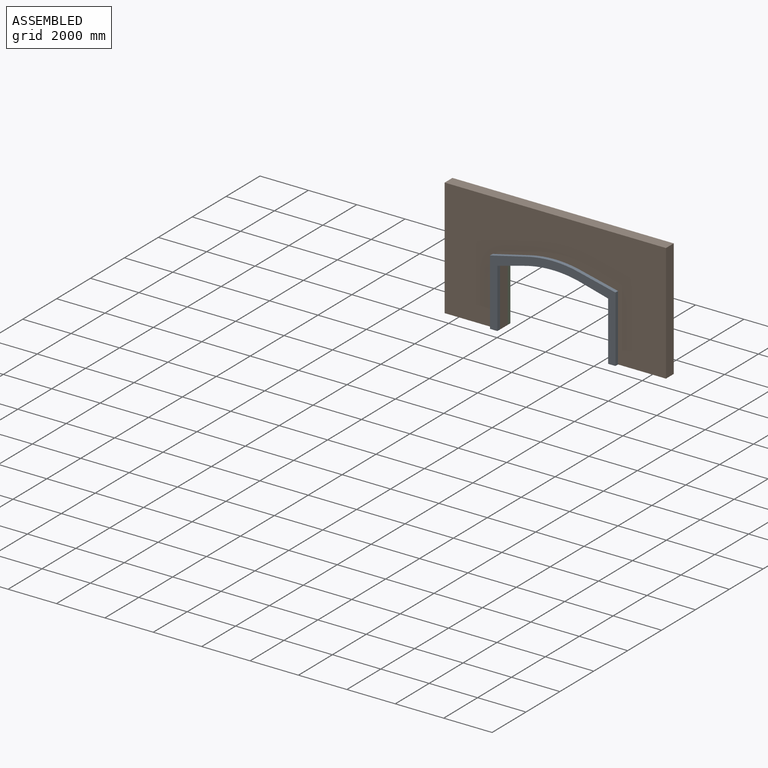
[diagram: assembled view]
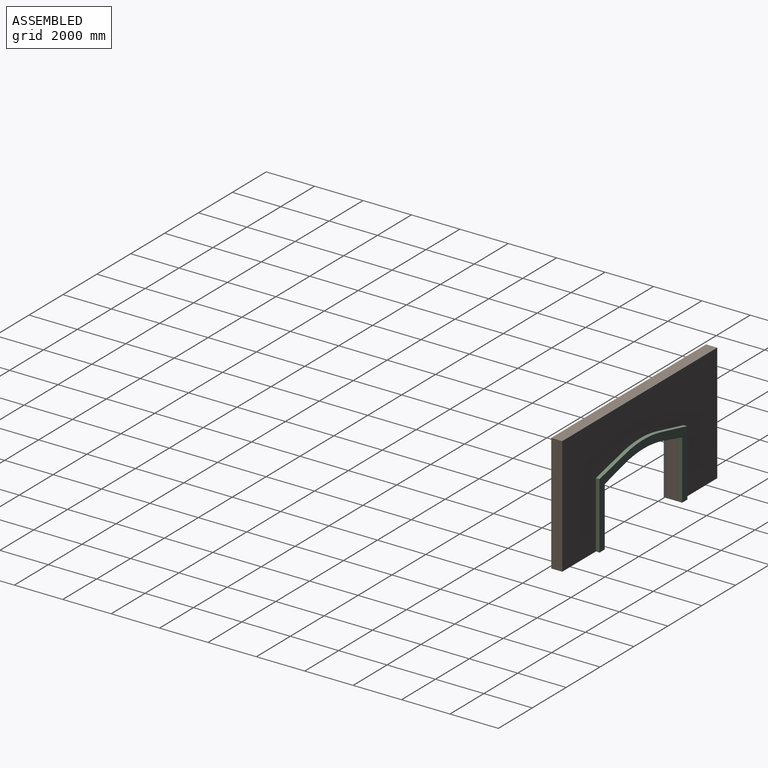
[diagram: assembled view, second angle]
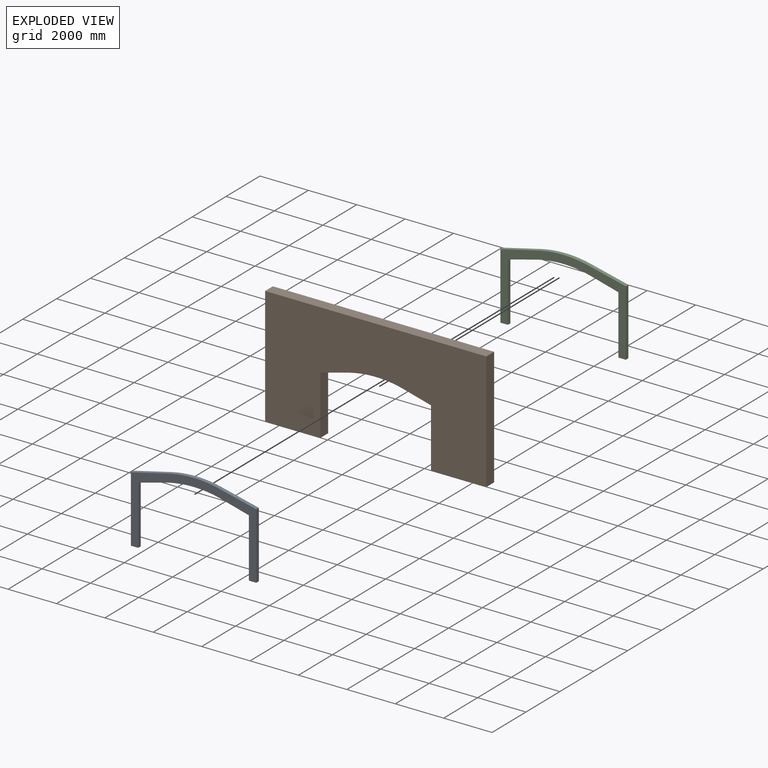
[diagram: exploded view]
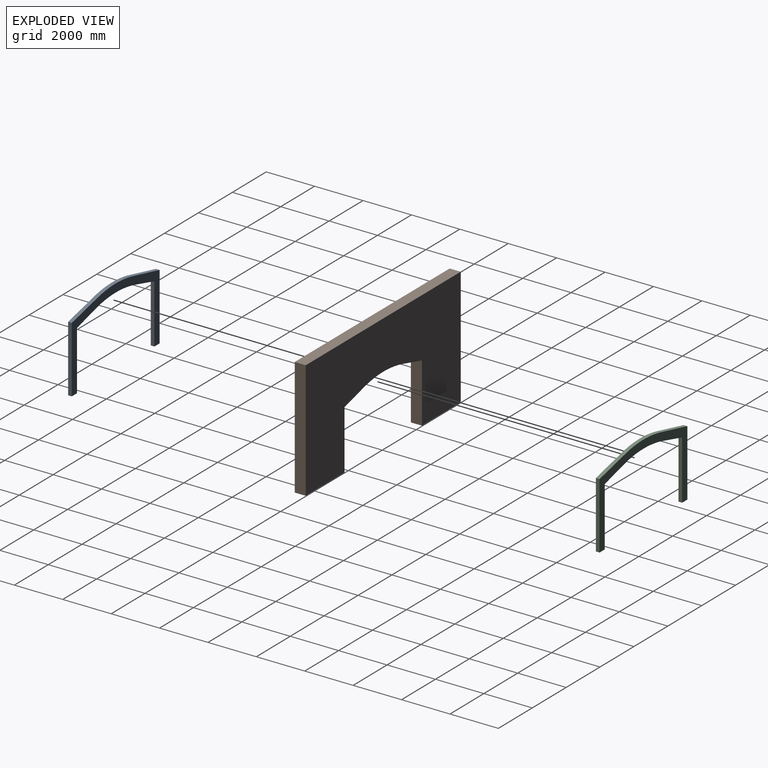
[diagram: exploded view, second angle]
ASSEMBLY  parts=3 mates=2
PART A: 14 faces, bbox 5181.6x152.4x3227.9 mm
  f0: plane 1107.97x295.46mm, normal (-0.26,0,-0.97), area 174754.7mm2, adj f1,f11,f12,f13
  f1: plane 2438.4x152.4mm, normal (-1,0,0), area 371612.2mm2, adj f0,f2,f12,f13
  f2: plane 304.8x152.4mm, normal (0,0,-1), area 46451.5mm2, adj f1,f3,f12,f13
  f3: plane 2743.2x152.4mm, normal (1,0,0), area 418063.7mm2, adj f2,f4,f12,f13
  f4: plane 1543.63x363.21mm, normal (0.23,0,0.97), area 241673.9mm2, adj f3,f5,f12,f13
  f5: cylinder r=4572mm len=2094.34mm, axis (0,1,0), area 322035.4mm2, adj f4,f6,f12,f13
  f6: plane 1543.63x363.21mm, normal (-0.23,0,0.97), area 241673.9mm2, adj f5,f7,f12,f13
  f7: plane 2743.2x152.4mm, normal (-1,0,0), area 418063.7mm2, adj f6,f8,f12,f13
  f8: plane 304.8x152.4mm, normal (0,0,-1), area 46451.5mm2, adj f7,f9,f12,f13
  f9: plane 2438.4x152.4mm, normal (1,0,0), area 371612.2mm2, adj f8,f10,f12,f13
  f10: plane 1107.97x295.46mm, normal (0.26,0,-0.97), area 174754.7mm2, adj f9,f11,f12,f13
  f11: cylinder r=4572mm len=2356.07mm, axis (0,1,0), area 363161.3mm2, adj f0,f10,f12,f13
  f12: plane 5181.6x3227.94mm, normal (0,-1,0), area 3290503.6mm2, adj f0,f1,f2,f3,f4,f5,f6,f7
  f13: plane 5181.6x3227.94mm, normal (0,1,0), area 3290503.6mm2, adj f0,f1,f2,f3,f4,f5,f6,f7
PART B: 12 faces, bbox 9144x457.2x4876.8 mm
  f0: plane 2286x457.2mm, normal (0,0,-1), area 1045159.2mm2, adj f1,f2,f6,f11
  f1: plane 9144x4876.8mm, normal (0,1,0), area 32178311.5mm2, adj f0,f2,f3,f4,f5,f7,f8,f9
  f2: plane 4876.8x457.2mm, normal (-1,0,0), area 2229673mm2, adj f0,f1,f5,f6
  f3: plane 2286x457.2mm, normal (0,0,-1), area 1045159.2mm2, adj f1,f4,f6,f7
  f4: plane 4876.8x457.2mm, normal (1,0,0), area 2229673mm2, adj f1,f3,f5,f6
  f5: plane 9144x457.2mm, normal (0,0,1), area 4180636.8mm2, adj f1,f2,f4,f6
  f6: plane 9144x4876.8mm, normal (0,-1,0), area 32178311.5mm2, adj f0,f2,f3,f4,f5,f7,f8,f9
  f7: plane 2438.4x457.2mm, normal (-1,0,0), area 1114836.5mm2, adj f1,f3,f6,f8
  f8: plane 1107.97x457.2mm, normal (-0.26,0,-0.97), area 524264mm2, adj f1,f6,f7,f9
  f9: cylinder r=4572mm len=2356.07mm, axis (0,1,0), area 1089483.9mm2, adj f1,f6,f8,f10
  f10: plane 1107.97x457.2mm, normal (0.26,0,-0.97), area 524264mm2, adj f1,f6,f9,f11
  f11: plane 2438.4x457.2mm, normal (1,0,0), area 1114836.5mm2, adj f0,f1,f6,f10
PART C: same geometry as A
PLACE A t=(-3575.6,314.81,-1341.01)mm
PLACE B t=(-3575.6,772.01,-1341.01)mm
PLACE C t=(-3575.6,924.41,-1341.01)mm
MATE fastened C.f12 <-> B.f1  axis (0,-1,0) through (-2097.83,772.01,-1176.65)mm
MATE fastened A.f13 <-> B.f6  axis (0,1,0) through (-2097.83,314.81,-1176.65)mm
